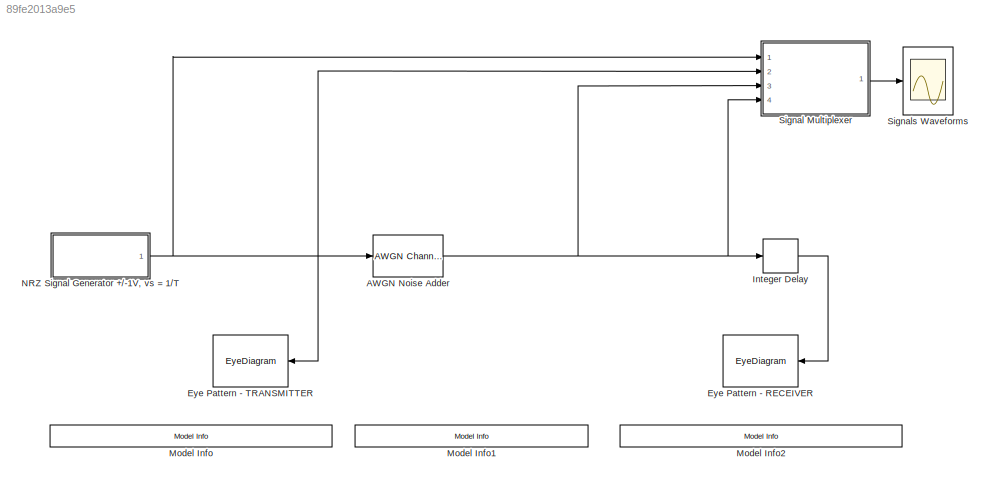
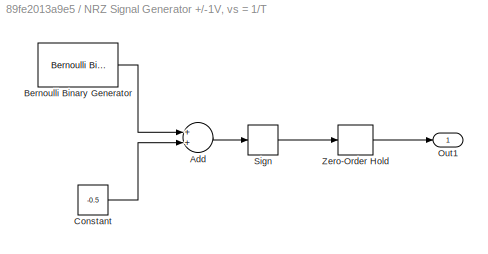
MODEL slx_89fe2013a9e5
KIND model
CONFIG AbsTol = auto
CONFIG EnableMultiTasking = on
CONFIG FixedStep = auto
CONFIG MaxStep = auto
CONFIG MinStep = auto
CONFIG RelTol = 1e-3
CONFIG SampleTimeConstraint = Unconstrained
CONFIG Solver = VariableStepDiscrete
CONFIG SolverName = VariableStepDiscrete
CONFIG StartTime = 0.0
CONFIG StopTime = L
BLOCK [Reference] AWGN Noise Adder  REF=commchan3/AWGN
Channel
  Ports = [1, 1]
  SourceBlock = commchan3/AWGN\nChannel
  SourceProductBaseCode = CM
  SourceProductName = Communications System Toolbox
  SourceType = AWGN Channel
  UserDataPersistent = on
BLOCK [EyeDiagram] Eye Pattern - RECEIVER
  Diagnostics = AllowInheritedTsInSrc
  Ports = [1]
  ScopeSpecificationString = comm.scopes.EyeDiagramBlockCfg('CurrentConfiguration', extmgr.ConfigurationSet(extmgr.Configuration('Core','General UI',true),extmgr.Configuration('Core','Source UI',true),extmgr.Configuration('Sources','WiredSimulink',true,'PointsPerSignal',164000),extmgr.Configuration('Sources','Simulink',false),extmgr.Configuration('Sources','Workspace',false),extmgr.Configuration('Sources','File',false),extmgr...<+1273ch>
  Tag = EyeDiagram
BLOCK [EyeDiagram] Eye Pattern - TRANSMITTER
  Diagnostics = AllowInheritedTsInSrc
  Ports = [1]
  ScopeSpecificationString = comm.scopes.EyeDiagramBlockCfg('CurrentConfiguration', extmgr.ConfigurationSet(extmgr.Configuration('Core','General UI',true),extmgr.Configuration('Core','Source UI',true),extmgr.Configuration('Sources','WiredSimulink',true),extmgr.Configuration('Sources','Simulink',false),extmgr.Configuration('Sources','File',false),extmgr.Configuration('Sources','Workspace',false),extmgr.Configuration('Sources',...<+1245ch>
  Tag = EyeDiagram
BLOCK [Delay] Integer Delay
  DelayLength = 3*N^2/4
  InputPortMap = u0
  InputProcessing = Inherited
  Ports = [1, 1]
BLOCK [Reference] Model Info  REF=simulink/Model-Wide
Utilities/Model Info
  Ports = []
  SourceBlock = simulink/Model-Wide\nUtilities/Model Info
  SourceProductBaseCode = SL
  SourceProductName = Simulink
  SourceType = CMBlock
BLOCK [Reference] Model Info1  REF=simulink/Model-Wide
Utilities/Model Info
  Ports = []
  SourceBlock = simulink/Model-Wide\nUtilities/Model Info
  SourceProductBaseCode = SL
  SourceProductName = Simulink
  SourceType = CMBlock
BLOCK [Reference] Model Info2  REF=simulink/Model-Wide
Utilities/Model Info
  Ports = []
  SourceBlock = simulink/Model-Wide\nUtilities/Model Info
  SourceProductBaseCode = SL
  SourceProductName = Simulink
  SourceType = CMBlock
BLOCK [SubSystem] NRZ Signal Generator +//-1V, vs = 1//T
  Ports = [0, 1]
  RequestExecContextInheritance = off
BLOCK [Sum] NRZ Signal Generator +//-1V, vs = 1//T/Add
  InputSameDT = off
  OutDataTypeStr = Inherit: Inherit via internal rule
  Ports = [2, 1]
  SaturateOnIntegerOverflow = off
BLOCK [Reference] NRZ Signal Generator +//-1V, vs = 1//T/Bernoulli Binary Generator  REF=commrandsrc2/Bernoulli Binary
Generator
  Ports = [0, 1]
  SourceBlock = commrandsrc2/Bernoulli Binary\nGenerator
  SourceType = Bernoulli Binary Generator
BLOCK [Constant] NRZ Signal Generator +//-1V, vs = 1//T/Constant
  Value = -0.5
BLOCK [Outport] NRZ Signal Generator +//-1V, vs = 1//T/Out1
  IconDisplay = Port number
BLOCK [Signum] NRZ Signal Generator +//-1V, vs = 1//T/Sign
  ZeroCross = off
BLOCK [ZeroOrderHold] NRZ Signal Generator +//-1V, vs = 1//T/Zero-Order Hold
  SampleTime = -1
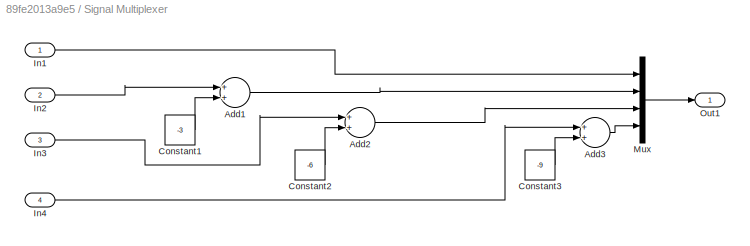
BLOCK [SubSystem] Signal Multiplexer
  Ports = [4, 1]
  RequestExecContextInheritance = off
BLOCK [Sum] Signal Multiplexer/Add1
  InputSameDT = off
  OutDataTypeStr = Inherit: Inherit via internal rule
  Ports = [2, 1]
  SaturateOnIntegerOverflow = off
BLOCK [Sum] Signal Multiplexer/Add2
  InputSameDT = off
  OutDataTypeStr = Inherit: Inherit via internal rule
  Ports = [2, 1]
  SaturateOnIntegerOverflow = off
BLOCK [Sum] Signal Multiplexer/Add3
  InputSameDT = off
  OutDataTypeStr = Inherit: Inherit via internal rule
  Ports = [2, 1]
  SaturateOnIntegerOverflow = off
BLOCK [Constant] Signal Multiplexer/Constant1
  Value = -3
BLOCK [Constant] Signal Multiplexer/Constant2
  Value = -6
BLOCK [Constant] Signal Multiplexer/Constant3
  Value = -9
BLOCK [Inport] Signal Multiplexer/In1
  IconDisplay = Port number
BLOCK [Inport] Signal Multiplexer/In2
  IconDisplay = Port number
  Port = 2
BLOCK [Inport] Signal Multiplexer/In3
  IconDisplay = Port number
  Port = 3
BLOCK [Inport] Signal Multiplexer/In4
  IconDisplay = Port number
  Port = 4
BLOCK [Mux] Signal Multiplexer/Mux
  DisplayOption = bar
  Ports = [4, 1]
BLOCK [Outport] Signal Multiplexer/Out1
  IconDisplay = Port number
BLOCK [Scope] Signals Waveforms
  Floating = off
  NumInputPorts = 1
  Ports = [1]
  ScopeSpecificationString = C++SS(StrPVP('Location','[5, 56, 1375, 779]'),StrPVP('Open','off'),StrPVP('TickLabels','on'),MxPVP('AxesTitles',53,'struct(''axes1'','' '')'),StrPVP('TimeRange','0.14'),StrPVP('YMin','-12'),StrPVP('YMax','2'),StrPVP('DataFormat','StructureWithTime'),StrPVP('LimitDataPoints','off'),StrPVP('BlockParamSampleTime','0'),StrPVP('Decimation','1'),StrPVP('BlockParamSampleInput','off'))
NET AWGN Noise Adder:1 -> Integer Delay:1, Signal Multiplexer:3, Signal Multiplexer:4
LINE Integer Delay:1 -> Eye Pattern - RECEIVER:1
LINE NRZ Signal Generator +//-1V, vs = 1//T/Add:1 -> NRZ Signal Generator +//-1V, vs = 1//T/Sign:1
LINE NRZ Signal Generator +//-1V, vs = 1//T/Bernoulli Binary Generator:1 -> NRZ Signal Generator +//-1V, vs = 1//T/Add:1
LINE NRZ Signal Generator +//-1V, vs = 1//T/Constant:1 -> NRZ Signal Generator +//-1V, vs = 1//T/Add:2
LINE NRZ Signal Generator +//-1V, vs = 1//T/Sign:1 -> NRZ Signal Generator +//-1V, vs = 1//T/Zero-Order Hold:1
LINE NRZ Signal Generator +//-1V, vs = 1//T/Zero-Order Hold:1 -> NRZ Signal Generator +//-1V, vs = 1//T/Out1:1
NET NRZ Signal Generator +//-1V, vs = 1//T:1 -> AWGN Noise Adder:1, Eye Pattern - TRANSMITTER:1, Signal Multiplexer:1, Signal Multiplexer:2
LINE Signal Multiplexer/Add1:1 -> Signal Multiplexer/Mux:2
LINE Signal Multiplexer/Add2:1 -> Signal Multiplexer/Mux:3
LINE Signal Multiplexer/Add3:1 -> Signal Multiplexer/Mux:4
LINE Signal Multiplexer/Constant1:1 -> Signal Multiplexer/Add1:2
LINE Signal Multiplexer/Constant2:1 -> Signal Multiplexer/Add2:2
LINE Signal Multiplexer/Constant3:1 -> Signal Multiplexer/Add3:2
LINE Signal Multiplexer/In1:1 -> Signal Multiplexer/Mux:1
LINE Signal Multiplexer/In2:1 -> Signal Multiplexer/Add1:1
LINE Signal Multiplexer/In3:1 -> Signal Multiplexer/Add2:1
LINE Signal Multiplexer/In4:1 -> Signal Multiplexer/Add3:1
LINE Signal Multiplexer/Mux:1 -> Signal Multiplexer/Out1:1
LINE Signal Multiplexer:1 -> Signals Waveforms:1
note: NET lines group one-source signal fan-out (src -> all destinations, sorted); 1:1 wires keep LINE
